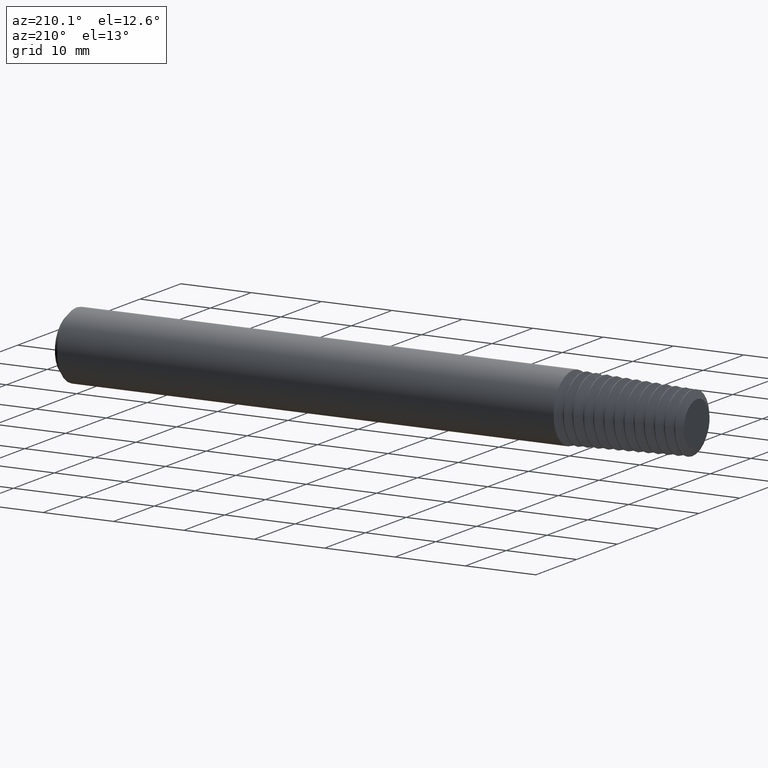
[diagram: clean part render]
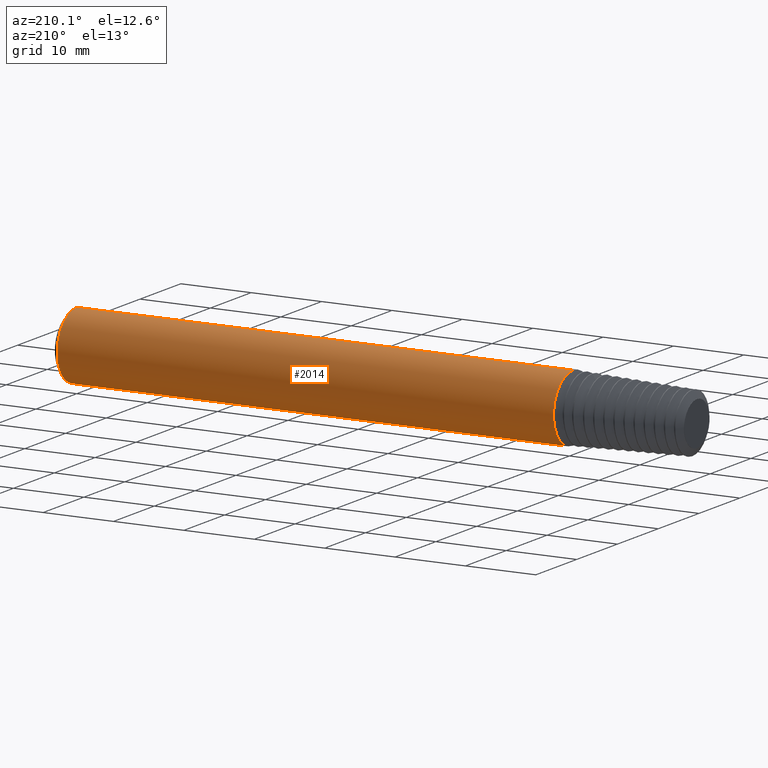
[diagram: same view with one face highlighted and labeled with its STEP entity id]
A machine part, auxiliary view. The second image highlights one B-rep face of the part: STEP entity #2014.
In plain terms, the highlighted cylindrical surface (partial cylindrical patch) has radius 4.7587 mm, axis along (1, 0, 0).
Its self-contained STEP definition (entity closure, byte-faithful):
#101 = ORIENTED_EDGE ( 'NONE', *, *, #1169, .T. ) ;
#121 = VECTOR ( 'NONE', #2622, 39.37007874015748143 ) ;
#241 = CARTESIAN_POINT ( 'NONE',  ( -0.8070851391175091205, 0.0000000000000000000, 0.0000000000000000000 ) ) ;
#253 = DIRECTION ( 'NONE',  ( 0.0000000000000000000, 0.0000000000000000000, -1.000000000000000000 ) ) ;
#269 = CARTESIAN_POINT ( 'NONE',  ( -0.8070851391175091205, 2.294375778202565406E-17, 0.1873499999999999888 ) ) ;
#301 = DIRECTION ( 'NONE',  ( 1.000000000000000000, 0.0000000000000000000, 0.0000000000000000000 ) ) ;
#408 = CIRCLE ( 'NONE', #1679, 0.1873499999999999888 ) ;
#456 = CARTESIAN_POINT ( 'NONE',  ( 1.969999999999997531, 0.0000000000000000000, -0.1873499999999999888 ) ) ;
#520 = CARTESIAN_POINT ( 'NONE',  ( -1.500000000000000222, 2.294375778202565406E-17, 0.1873499999999999888 ) ) ;
#571 = EDGE_CURVE ( 'NONE', #2000, #669, #2147, .T. ) ;
#585 = AXIS2_PLACEMENT_3D ( 'NONE', #1958, #901, #253 ) ;
#592 = FACE_OUTER_BOUND ( 'NONE', #2344, .T. ) ;
#669 = VERTEX_POINT ( 'NONE', #924 ) ;
#710 = LINE ( 'NONE', #520, #121 ) ;
#758 = EDGE_CURVE ( 'NONE', #2000, #2610, #710, .T. ) ;
#774 = EDGE_CURVE ( 'NONE', #669, #1874, #2359, .T. ) ;
#901 = DIRECTION ( 'NONE',  ( 1.000000000000000000, 0.0000000000000000000, 0.0000000000000000000 ) ) ;
#924 = CARTESIAN_POINT ( 'NONE',  ( -0.8070851391175091205, 0.0000000000000000000, -0.1873499999999999888 ) ) ;
#956 = ORIENTED_EDGE ( 'NONE', *, *, #774, .F. ) ;
#967 = CYLINDRICAL_SURFACE ( 'NONE', #585, 0.1873499999999999888 ) ;
#1011 = CARTESIAN_POINT ( 'NONE',  ( 1.969999999999997531, 2.294375778202565406E-17, 0.1873499999999999888 ) ) ;
#1058 = DIRECTION ( 'NONE',  ( -1.000000000000000000, -0.0000000000000000000, -0.0000000000000000000 ) ) ;
#1169 = EDGE_CURVE ( 'NONE', #2610, #1874, #408, .T. ) ;
#1679 = AXIS2_PLACEMENT_3D ( 'NONE', #2647, #2621, #2040 ) ;
#1874 = VERTEX_POINT ( 'NONE', #456 ) ;
#1898 = VECTOR ( 'NONE', #301, 39.37007874015748143 ) ;
#1958 = CARTESIAN_POINT ( 'NONE',  ( -1.500000000000000222, 0.0000000000000000000, 0.0000000000000000000 ) ) ;
#1971 = ORIENTED_EDGE ( 'NONE', *, *, #571, .F. ) ;
#2000 = VERTEX_POINT ( 'NONE', #269 ) ;
#2014 = ADVANCED_FACE ( 'NONE', ( #592 ), #967, .T. ) ;
#2040 = DIRECTION ( 'NONE',  ( 0.0000000000000000000, 0.0000000000000000000, -1.000000000000000000 ) ) ;
#2127 = ORIENTED_EDGE ( 'NONE', *, *, #758, .T. ) ;
#2147 = CIRCLE ( 'NONE', #2237, 0.1873499999999999888 ) ;
#2237 = AXIS2_PLACEMENT_3D ( 'NONE', #241, #1058, #2517 ) ;
#2344 = EDGE_LOOP ( 'NONE', ( #1971, #2127, #101, #956 ) ) ;
#2359 = LINE ( 'NONE', #2399, #1898 ) ;
#2399 = CARTESIAN_POINT ( 'NONE',  ( -1.500000000000000222, 0.0000000000000000000, -0.1873499999999999888 ) ) ;
#2517 = DIRECTION ( 'NONE',  ( 0.0000000000000000000, 0.0000000000000000000, -1.000000000000000000 ) ) ;
#2610 = VERTEX_POINT ( 'NONE', #1011 ) ;
#2621 = DIRECTION ( 'NONE',  ( -1.000000000000000000, -0.0000000000000000000, -0.0000000000000000000 ) ) ;
#2622 = DIRECTION ( 'NONE',  ( 1.000000000000000000, 0.0000000000000000000, 0.0000000000000000000 ) ) ;
#2647 = CARTESIAN_POINT ( 'NONE',  ( 1.969999999999997531, 0.0000000000000000000, 0.0000000000000000000 ) ) ;